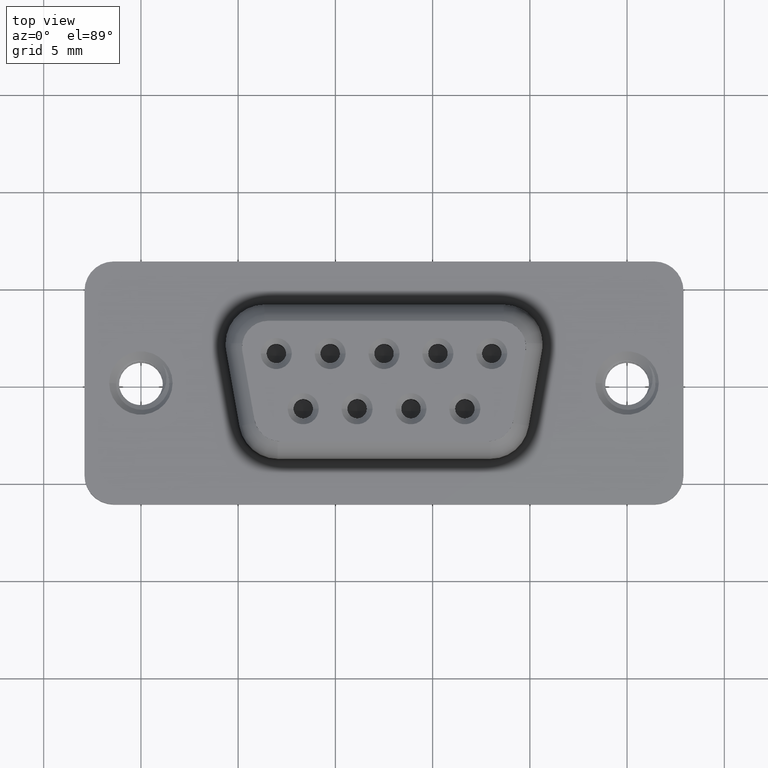
[diagram: clean part render]
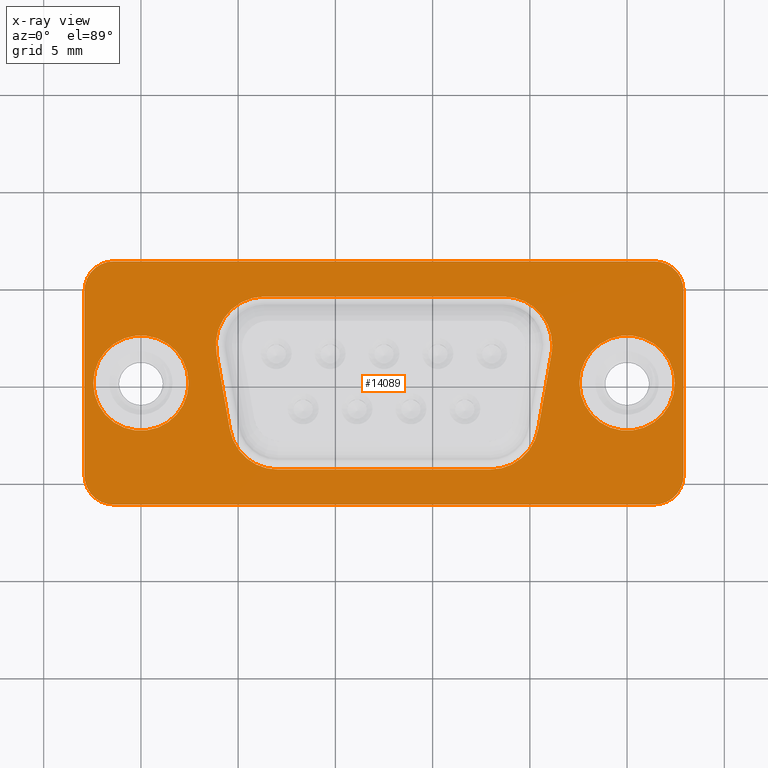
[diagram: x-ray — body ghosted, one internal face saturated and labeled with its STEP entity id]
A machine part, top view, then the same camera in x-ray: the body is ghosted and one INTERNAL B-rep face — a face not visible from any outside direction — is saturated and labeled: STEP entity #14089.
In plain terms, the highlighted planar face has unit normal (0, 0, 1).
Its self-contained STEP definition (entity closure, byte-faithful):
#169 = CIRCLE ( 'NONE', #11923, 1.500000000000000888 ) ;
#204 = DIRECTION ( 'NONE',  ( -0.0000000000000000000, -0.0000000000000000000, -1.000000000000000000 ) ) ;
#331 = VERTEX_POINT ( 'NONE', #2305 ) ;
#448 = AXIS2_PLACEMENT_3D ( 'NONE', #4121, #9189, #2965 ) ;
#453 = LINE ( 'NONE', #693, #5753 ) ;
#527 = DIRECTION ( 'NONE',  ( -0.1736481776669242527, -0.9848077530122092416, 0.0000000000000000000 ) ) ;
#560 = ORIENTED_EDGE ( 'NONE', *, *, #14743, .F. ) ;
#623 = DIRECTION ( 'NONE',  ( 1.000000000000000000, 0.0000000000000000000, 0.0000000000000000000 ) ) ;
#685 = ORIENTED_EDGE ( 'NONE', *, *, #14090, .F. ) ;
#689 = CARTESIAN_POINT ( 'NONE',  ( 4.575655842232465353, -2.384120444167311170, -2.168404344971008868E-16 ) ) ;
#691 = AXIS2_PLACEMENT_3D ( 'NONE', #7448, #13422, #12449 ) ;
#693 = CARTESIAN_POINT ( 'NONE',  ( 21.11201938253053356, 1.515879555832687853, -2.168404344971008868E-16 ) ) ;
#895 = AXIS2_PLACEMENT_3D ( 'NONE', #13045, #11821, #623 ) ;
#962 = CIRCLE ( 'NONE', #448, 1.500000000000001332 ) ;
#975 = EDGE_LOOP ( 'NONE', ( #11166, #3478, #11292, #5482, #4911, #8953, #15239, #14388, #5544 ) ) ;
#1024 = AXIS2_PLACEMENT_3D ( 'NONE', #1768, #2835, #9128 ) ;
#1210 = CARTESIAN_POINT ( 'NONE',  ( 21.15000000000001279, 1.949999999999996847, -2.168404344971008868E-16 ) ) ;
#1492 = DIRECTION ( 'NONE',  ( 1.000000000000000000, 0.0000000000000000000, 0.0000000000000000000 ) ) ;
#1494 = AXIS2_PLACEMENT_3D ( 'NONE', #15468, #3048, #5748 ) ;
#1499 = ORIENTED_EDGE ( 'NONE', *, *, #8227, .F. ) ;
#1523 = ORIENTED_EDGE ( 'NONE', *, *, #11277, .F. ) ;
#1672 = CIRCLE ( 'NONE', #4799, 2.499999999999999556 ) ;
#1768 = CARTESIAN_POINT ( 'NONE',  ( 18.65000000000000924, 1.949999999999996847, -2.168404344971008868E-16 ) ) ;
#1852 = VERTEX_POINT ( 'NONE', #13768 ) ;
#1858 = EDGE_CURVE ( 'NONE', #10093, #3984, #9236, .T. ) ;
#1865 = DIRECTION ( 'NONE',  ( 0.0000000000000000000, 0.0000000000000000000, 1.000000000000000000 ) ) ;
#1899 = CARTESIAN_POINT ( 'NONE',  ( 25.00000000000000000, 4.592425496802575156E-15, 0.0000000000000000000 ) ) ;
#1972 = DIRECTION ( 'NONE',  ( -0.0000000000000000000, -0.0000000000000000000, -1.000000000000000000 ) ) ;
#2034 = EDGE_CURVE ( 'NONE', #1852, #15289, #169, .T. ) ;
#2081 = EDGE_CURVE ( 'NONE', #11861, #8734, #4868, .T. ) ;
#2152 = AXIS2_PLACEMENT_3D ( 'NONE', #6472, #9090, #5412 ) ;
#2155 = ORIENTED_EDGE ( 'NONE', *, *, #3355, .F. ) ;
#2255 = VECTOR ( 'NONE', #7953, 1000.000000000000000 ) ;
#2266 = CIRCLE ( 'NONE', #1494, 1.500000000000000444 ) ;
#2305 = CARTESIAN_POINT ( 'NONE',  ( 20.42434415776754975, -2.384120444167310726, 0.0000000000000000000 ) ) ;
#2363 = ORIENTED_EDGE ( 'NONE', *, *, #12242, .F. ) ;
#2428 = EDGE_CURVE ( 'NONE', #14404, #10605, #12758, .T. ) ;
#2446 = LINE ( 'NONE', #12445, #13097 ) ;
#2554 = DIRECTION ( 'NONE',  ( -0.0000000000000000000, -0.0000000000000000000, -1.000000000000000000 ) ) ;
#2745 = DIRECTION ( 'NONE',  ( 1.000000000000000000, 0.0000000000000000000, 0.0000000000000000000 ) ) ;
#2835 = DIRECTION ( 'NONE',  ( -0.0000000000000000000, -0.0000000000000000000, -1.000000000000000000 ) ) ;
#2874 = CARTESIAN_POINT ( 'NONE',  ( 6.350000000000004974, 4.449999999999997513, 0.0000000000000000000 ) ) ;
#2882 = LINE ( 'NONE', #6563, #2255 ) ;
#2965 = DIRECTION ( 'NONE',  ( 1.000000000000000000, 0.0000000000000000000, 0.0000000000000000000 ) ) ;
#3015 = CARTESIAN_POINT ( 'NONE',  ( -2.900000000000002576, -4.750000000000002665, 0.0000000000000000000 ) ) ;
#3048 = DIRECTION ( 'NONE',  ( 0.0000000000000000000, 0.0000000000000000000, 1.000000000000000000 ) ) ;
#3138 = AXIS2_PLACEMENT_3D ( 'NONE', #10664, #1972, #6950 ) ;
#3189 = CARTESIAN_POINT ( 'NONE',  ( 17.96232477523702542, -4.450000000000001066, 0.0000000000000000000 ) ) ;
#3278 = AXIS2_PLACEMENT_3D ( 'NONE', #13505, #14721, #11056 ) ;
#3304 = EDGE_CURVE ( 'NONE', #15739, #15236, #7803, .T. ) ;
#3355 = EDGE_CURVE ( 'NONE', #9420, #7648, #2882, .T. ) ;
#3478 = ORIENTED_EDGE ( 'NONE', *, *, #8157, .F. ) ;
#3606 = CARTESIAN_POINT ( 'NONE',  ( 26.39999999999999503, -6.250000000000000000, 0.0000000000000000000 ) ) ;
#3861 = CARTESIAN_POINT ( 'NONE',  ( -2.900000000000003464, -4.750000000000002665, 0.0000000000000000000 ) ) ;
#3984 = VERTEX_POINT ( 'NONE', #6549 ) ;
#4121 = CARTESIAN_POINT ( 'NONE',  ( 26.39999999999999503, -4.749999999999999112, 0.0000000000000000000 ) ) ;
#4330 = CARTESIAN_POINT ( 'NONE',  ( 18.65000000000000924, 4.449999999999997513, 0.0000000000000000000 ) ) ;
#4424 = DIRECTION ( 'NONE',  ( 1.000000000000000000, 0.0000000000000000000, 0.0000000000000000000 ) ) ;
#4497 = DIRECTION ( 'NONE',  ( 1.000000000000000000, 0.0000000000000000000, 0.0000000000000000000 ) ) ;
#4748 = PLANE ( 'NONE',  #691 ) ;
#4799 = AXIS2_PLACEMENT_3D ( 'NONE', #5284, #15470, #2745 ) ;
#4868 = CIRCLE ( 'NONE', #6937, 2.449999999999997513 ) ;
#4907 = EDGE_LOOP ( 'NONE', ( #2363, #6501 ) ) ;
#4911 = ORIENTED_EDGE ( 'NONE', *, *, #6240, .F. ) ;
#4935 = EDGE_CURVE ( 'NONE', #6645, #14404, #5450, .T. ) ;
#5119 = DIRECTION ( 'NONE',  ( -1.000000000000000000, -0.0000000000000000000, 0.0000000000000000000 ) ) ;
#5174 = CARTESIAN_POINT ( 'NONE',  ( 18.65000000000000924, 1.949999999999996847, -2.168404344971008868E-16 ) ) ;
#5284 = CARTESIAN_POINT ( 'NONE',  ( 6.350000000000005862, 1.949999999999996847, -2.168404344971008868E-16 ) ) ;
#5376 = AXIS2_PLACEMENT_3D ( 'NONE', #6395, #204, #4497 ) ;
#5388 = DIRECTION ( 'NONE',  ( 1.000000000000000000, 0.0000000000000000000, 0.0000000000000000000 ) ) ;
#5412 = DIRECTION ( 'NONE',  ( 1.000000000000000000, 8.673617379884040402E-16, 0.0000000000000000000 ) ) ;
#5450 = CIRCLE ( 'NONE', #1024, 2.500000000000002220 ) ;
#5482 = ORIENTED_EDGE ( 'NONE', *, *, #9325, .F. ) ;
#5503 = CARTESIAN_POINT ( 'NONE',  ( 27.89999999999999858, 4.750000000000000888, 0.0000000000000000000 ) ) ;
#5544 = ORIENTED_EDGE ( 'NONE', *, *, #10678, .F. ) ;
#5748 = DIRECTION ( 'NONE',  ( -1.000000000000000000, 0.0000000000000000000, 0.0000000000000000000 ) ) ;
#5753 = VECTOR ( 'NONE', #527, 999.9999999999998863 ) ;
#6031 = CARTESIAN_POINT ( 'NONE',  ( 26.39999999999999503, 4.449999999999997513, 0.0000000000000000000 ) ) ;
#6109 = DIRECTION ( 'NONE',  ( 1.000000000000000000, 0.0000000000000000000, -0.0000000000000000000 ) ) ;
#6123 = FACE_BOUND ( 'NONE', #14372, .T. ) ;
#6167 = CARTESIAN_POINT ( 'NONE',  ( 3.887980617469481093, 1.515879555832687853, 0.0000000000000000000 ) ) ;
#6240 = EDGE_CURVE ( 'NONE', #10605, #331, #453, .T. ) ;
#6349 = CARTESIAN_POINT ( 'NONE',  ( 27.89999999999999858, -4.749999999999999112, 0.0000000000000000000 ) ) ;
#6395 = CARTESIAN_POINT ( 'NONE',  ( 25.00000000000000000, 4.592425496802575156E-15, 0.0000000000000000000 ) ) ;
#6472 = CARTESIAN_POINT ( 'NONE',  ( 17.96232477523702542, -1.950000000000002176, -2.168404344971008868E-16 ) ) ;
#6501 = ORIENTED_EDGE ( 'NONE', *, *, #1858, .F. ) ;
#6549 = CARTESIAN_POINT ( 'NONE',  ( 2.449999999999999734, 0.0000000000000000000, 0.0000000000000000000 ) ) ;
#6563 = CARTESIAN_POINT ( 'NONE',  ( 26.39999999999999503, -6.249999999999999112, 0.0000000000000000000 ) ) ;
#6645 = VERTEX_POINT ( 'NONE', #4330 ) ;
#6838 = CARTESIAN_POINT ( 'NONE',  ( 26.39999999999999503, 6.250000000000001776, 0.0000000000000000000 ) ) ;
#6914 = VERTEX_POINT ( 'NONE', #13821 ) ;
#6937 = AXIS2_PLACEMENT_3D ( 'NONE', #1899, #10592, #4424 ) ;
#6950 = DIRECTION ( 'NONE',  ( 1.000000000000000000, 8.673617379884037444E-16, 0.0000000000000000000 ) ) ;
#6964 = DIRECTION ( 'NONE',  ( -0.1736481776669235866, 0.9848077530122093526, -0.0000000000000000000 ) ) ;
#7448 = CARTESIAN_POINT ( 'NONE',  ( 26.39999999999999503, 4.750000000000000888, 0.0000000000000000000 ) ) ;
#7615 = VERTEX_POINT ( 'NONE', #5503 ) ;
#7648 = VERTEX_POINT ( 'NONE', #3606 ) ;
#7803 = LINE ( 'NONE', #10276, #12946 ) ;
#7808 = ORIENTED_EDGE ( 'NONE', *, *, #2034, .F. ) ;
#7840 = EDGE_LOOP ( 'NONE', ( #685, #9207, #13576, #2155, #560, #1523, #7808, #1499 ) ) ;
#7930 = CIRCLE ( 'NONE', #895, 2.449999999999999734 ) ;
#7953 = DIRECTION ( 'NONE',  ( 1.000000000000000000, 9.360018755270542231E-17, -0.0000000000000000000 ) ) ;
#8142 = DIRECTION ( 'NONE',  ( 1.000000000000000000, 0.0000000000000000000, 0.0000000000000000000 ) ) ;
#8157 = EDGE_CURVE ( 'NONE', #15236, #6914, #9162, .T. ) ;
#8227 = EDGE_CURVE ( 'NONE', #8518, #1852, #2446, .T. ) ;
#8300 = CARTESIAN_POINT ( 'NONE',  ( -2.900000000000003464, 4.749999999999997335, 0.0000000000000000000 ) ) ;
#8475 = VECTOR ( 'NONE', #6964, 999.9999999999998863 ) ;
#8518 = VERTEX_POINT ( 'NONE', #6838 ) ;
#8734 = VERTEX_POINT ( 'NONE', #9558 ) ;
#8953 = ORIENTED_EDGE ( 'NONE', *, *, #2428, .F. ) ;
#9090 = DIRECTION ( 'NONE',  ( -0.0000000000000000000, -0.0000000000000000000, -1.000000000000000000 ) ) ;
#9128 = DIRECTION ( 'NONE',  ( 1.000000000000000000, 0.0000000000000000000, 0.0000000000000000000 ) ) ;
#9162 = CIRCLE ( 'NONE', #3138, 2.499999999999999556 ) ;
#9189 = DIRECTION ( 'NONE',  ( 0.0000000000000000000, 0.0000000000000000000, 1.000000000000000000 ) ) ;
#9193 = CIRCLE ( 'NONE', #2152, 2.499999999999998668 ) ;
#9207 = ORIENTED_EDGE ( 'NONE', *, *, #12402, .F. ) ;
#9236 = CIRCLE ( 'NONE', #12101, 2.449999999999999734 ) ;
#9246 = CARTESIAN_POINT ( 'NONE',  ( -1.400000000000001688, -6.250000000000001776, 0.0000000000000000000 ) ) ;
#9325 = EDGE_CURVE ( 'NONE', #331, #15739, #9193, .T. ) ;
#9349 = LINE ( 'NONE', #689, #8475 ) ;
#9420 = VERTEX_POINT ( 'NONE', #9246 ) ;
#9462 = CARTESIAN_POINT ( 'NONE',  ( 7.037675224762989679, -4.450000000000002842, 0.0000000000000000000 ) ) ;
#9558 = CARTESIAN_POINT ( 'NONE',  ( 27.44999999999999929, 4.592425496802575156E-15, 0.0000000000000000000 ) ) ;
#9645 = LINE ( 'NONE', #6031, #12161 ) ;
#9864 = AXIS2_PLACEMENT_3D ( 'NONE', #5174, #14966, #1492 ) ;
#10093 = VERTEX_POINT ( 'NONE', #11799 ) ;
#10186 = LINE ( 'NONE', #3861, #11097 ) ;
#10276 = CARTESIAN_POINT ( 'NONE',  ( 26.39999999999999503, -4.450000000000001066, 0.0000000000000000000 ) ) ;
#10367 = CIRCLE ( 'NONE', #3278, 1.500000000000001332 ) ;
#10571 = VECTOR ( 'NONE', #13861, 1000.000000000000000 ) ;
#10592 = DIRECTION ( 'NONE',  ( -0.0000000000000000000, -0.0000000000000000000, -1.000000000000000000 ) ) ;
#10605 = VERTEX_POINT ( 'NONE', #14767 ) ;
#10664 = CARTESIAN_POINT ( 'NONE',  ( 7.037675224762990567, -1.950000000000002176, -2.168404344971008868E-16 ) ) ;
#10678 = EDGE_CURVE ( 'NONE', #13656, #11307, #1672, .T. ) ;
#11056 = DIRECTION ( 'NONE',  ( 1.000000000000000000, 0.0000000000000000000, 0.0000000000000000000 ) ) ;
#11097 = VECTOR ( 'NONE', #15376, 1000.000000000000000 ) ;
#11147 = FACE_BOUND ( 'NONE', #4907, .T. ) ;
#11166 = ORIENTED_EDGE ( 'NONE', *, *, #12826, .F. ) ;
#11277 = EDGE_CURVE ( 'NONE', #15289, #13207, #10186, .T. ) ;
#11292 = ORIENTED_EDGE ( 'NONE', *, *, #3304, .F. ) ;
#11307 = VERTEX_POINT ( 'NONE', #2874 ) ;
#11799 = CARTESIAN_POINT ( 'NONE',  ( -2.449999999999999734, 3.000384657911015370E-16, 0.0000000000000000000 ) ) ;
#11821 = DIRECTION ( 'NONE',  ( -0.0000000000000000000, -0.0000000000000000000, -1.000000000000000000 ) ) ;
#11861 = VERTEX_POINT ( 'NONE', #15671 ) ;
#11923 = AXIS2_PLACEMENT_3D ( 'NONE', #15825, #1865, #8142 ) ;
#12101 = AXIS2_PLACEMENT_3D ( 'NONE', #14971, #2554, #5388 ) ;
#12161 = VECTOR ( 'NONE', #6109, 1000.000000000000000 ) ;
#12241 = ORIENTED_EDGE ( 'NONE', *, *, #13889, .F. ) ;
#12242 = EDGE_CURVE ( 'NONE', #3984, #10093, #7930, .T. ) ;
#12402 = EDGE_CURVE ( 'NONE', #15022, #7615, #14988, .T. ) ;
#12436 = CIRCLE ( 'NONE', #5376, 2.449999999999997513 ) ;
#12445 = CARTESIAN_POINT ( 'NONE',  ( 26.39999999999999503, 6.250000000000001776, 0.0000000000000000000 ) ) ;
#12449 = DIRECTION ( 'NONE',  ( 1.000000000000000000, 0.0000000000000000000, -0.0000000000000000000 ) ) ;
#12555 = CARTESIAN_POINT ( 'NONE',  ( 27.89999999999999858, -4.749999999999999112, 0.0000000000000000000 ) ) ;
#12758 = CIRCLE ( 'NONE', #9864, 2.500000000000002220 ) ;
#12826 = EDGE_CURVE ( 'NONE', #6914, #13656, #9349, .T. ) ;
#12946 = VECTOR ( 'NONE', #5119, 1000.000000000000000 ) ;
#13045 = CARTESIAN_POINT ( 'NONE',  ( 0.0000000000000000000, 0.0000000000000000000, 0.0000000000000000000 ) ) ;
#13097 = VECTOR ( 'NONE', #15999, 1000.000000000000000 ) ;
#13207 = VERTEX_POINT ( 'NONE', #3015 ) ;
#13371 = EDGE_CURVE ( 'NONE', #11307, #6645, #9645, .T. ) ;
#13422 = DIRECTION ( 'NONE',  ( 0.0000000000000000000, 0.0000000000000000000, 1.000000000000000000 ) ) ;
#13505 = CARTESIAN_POINT ( 'NONE',  ( 26.39999999999999503, 4.750000000000000888, 0.0000000000000000000 ) ) ;
#13576 = ORIENTED_EDGE ( 'NONE', *, *, #14516, .F. ) ;
#13656 = VERTEX_POINT ( 'NONE', #6167 ) ;
#13768 = CARTESIAN_POINT ( 'NONE',  ( -1.400000000000002132, 6.249999999999998224, 0.0000000000000000000 ) ) ;
#13821 = CARTESIAN_POINT ( 'NONE',  ( 4.575655842232465353, -2.384120444167310726, 0.0000000000000000000 ) ) ;
#13861 = DIRECTION ( 'NONE',  ( 0.0000000000000000000, 1.000000000000000000, 0.0000000000000000000 ) ) ;
#13889 = EDGE_CURVE ( 'NONE', #8734, #11861, #12436, .T. ) ;
#14089 = ADVANCED_FACE ( 'NONE', ( #6123, #14804, #15936, #11147 ), #4748, .F. ) ;
#14090 = EDGE_CURVE ( 'NONE', #7615, #8518, #10367, .T. ) ;
#14372 = EDGE_LOOP ( 'NONE', ( #12241, #15193 ) ) ;
#14388 = ORIENTED_EDGE ( 'NONE', *, *, #13371, .F. ) ;
#14404 = VERTEX_POINT ( 'NONE', #1210 ) ;
#14516 = EDGE_CURVE ( 'NONE', #7648, #15022, #962, .T. ) ;
#14721 = DIRECTION ( 'NONE',  ( 0.0000000000000000000, 0.0000000000000000000, 1.000000000000000000 ) ) ;
#14743 = EDGE_CURVE ( 'NONE', #13207, #9420, #2266, .T. ) ;
#14767 = CARTESIAN_POINT ( 'NONE',  ( 21.11201938253054067, 1.515879555832687187, -2.168404344971008868E-16 ) ) ;
#14804 = FACE_BOUND ( 'NONE', #975, .T. ) ;
#14966 = DIRECTION ( 'NONE',  ( -0.0000000000000000000, -0.0000000000000000000, -1.000000000000000000 ) ) ;
#14971 = CARTESIAN_POINT ( 'NONE',  ( 0.0000000000000000000, 0.0000000000000000000, 0.0000000000000000000 ) ) ;
#14988 = LINE ( 'NONE', #12555, #10571 ) ;
#15022 = VERTEX_POINT ( 'NONE', #6349 ) ;
#15193 = ORIENTED_EDGE ( 'NONE', *, *, #2081, .F. ) ;
#15236 = VERTEX_POINT ( 'NONE', #9462 ) ;
#15239 = ORIENTED_EDGE ( 'NONE', *, *, #4935, .F. ) ;
#15289 = VERTEX_POINT ( 'NONE', #8300 ) ;
#15376 = DIRECTION ( 'NONE',  ( -0.0000000000000000000, -1.000000000000000000, -0.0000000000000000000 ) ) ;
#15468 = CARTESIAN_POINT ( 'NONE',  ( -1.400000000000001910, -4.750000000000002665, 0.0000000000000000000 ) ) ;
#15470 = DIRECTION ( 'NONE',  ( -0.0000000000000000000, -0.0000000000000000000, -1.000000000000000000 ) ) ;
#15671 = CARTESIAN_POINT ( 'NONE',  ( 22.55000000000000426, 4.892463962593675953E-15, 0.0000000000000000000 ) ) ;
#15739 = VERTEX_POINT ( 'NONE', #3189 ) ;
#15825 = CARTESIAN_POINT ( 'NONE',  ( -1.400000000000001910, 4.749999999999997335, 0.0000000000000000000 ) ) ;
#15936 = FACE_OUTER_BOUND ( 'NONE', #7840, .T. ) ;
#15999 = DIRECTION ( 'NONE',  ( -1.000000000000000000, -1.560003125878423870E-16, 0.0000000000000000000 ) ) ;